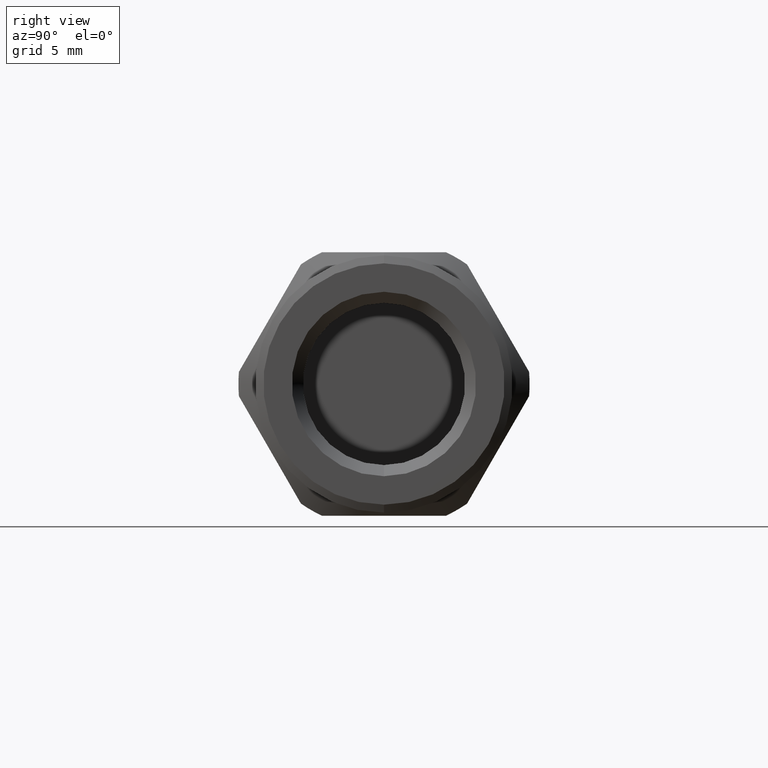
[diagram: clean part render]
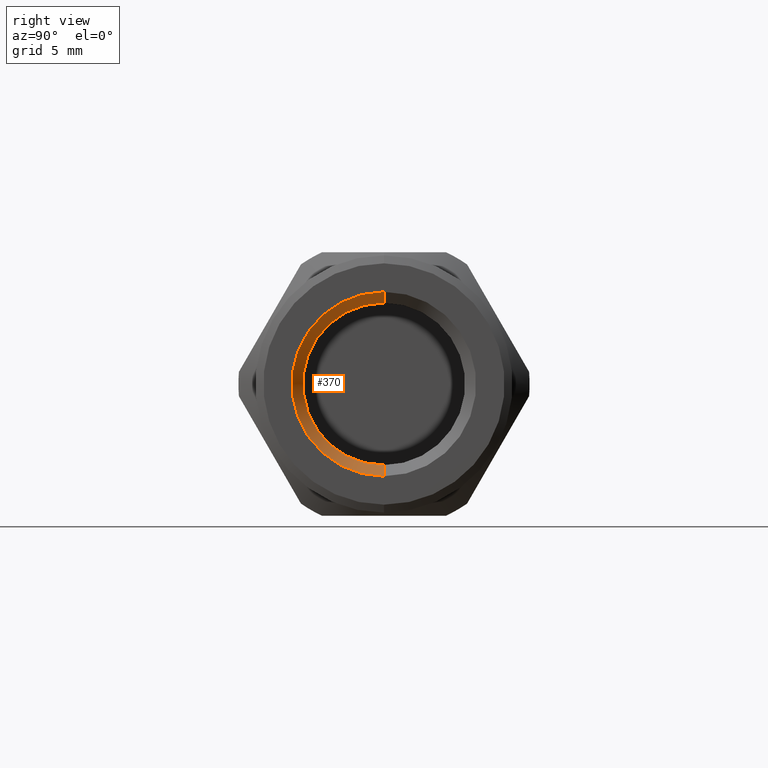
[diagram: same view with one face highlighted and labeled with its STEP entity id]
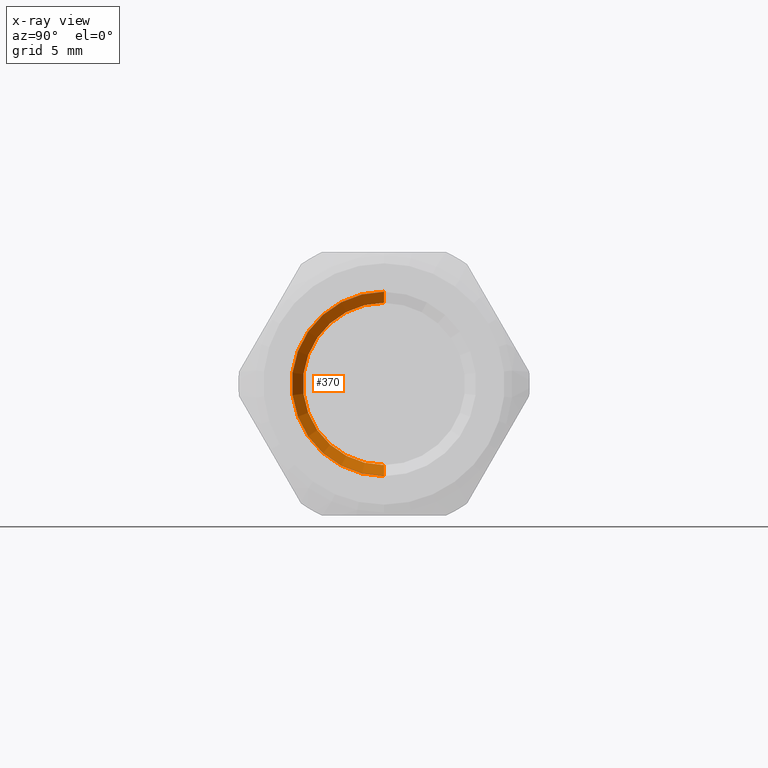
[diagram: x-ray of the same camera — body ghosted, the highlighted face saturated]
A machine part, right view. The second image highlights one B-rep face of the part: STEP entity #370.
The next image is the same camera in x-ray: the body ghosted, the highlighted face saturated — about 0% of this face is hidden behind the body in this view.
In plain terms, the highlighted conical surface has half-angle 45 deg.
Its self-contained STEP definition (entity closure, byte-faithful):
#170 = AXIS2_PLACEMENT_3D ( 'NONE', #559, #620, #621 ) ;
#171 = AXIS2_PLACEMENT_3D ( 'NONE', #614, #612, #613 ) ;
#282 = AXIS2_PLACEMENT_3D ( 'NONE', #1637, #1636, #1633 ) ;
#293 = EDGE_CURVE ( 'NONE', #740, #667, #903, .T. ) ;
#298 = EDGE_CURVE ( 'NONE', #740, #729, #896, .T. ) ;
#300 = EDGE_CURVE ( 'NONE', #667, #680, #894, .T. ) ;
#306 = EDGE_CURVE ( 'NONE', #729, #680, #890, .T. ) ;
#370 = ADVANCED_FACE ( 'NONE', ( #867 ), #866, .F. ) ;
#559 = CARTESIAN_POINT ( 'NONE',  ( -0.7999999999999120000, 0.0000000000000000000, 0.0000000000000000000 ) ) ;
#592 = CARTESIAN_POINT ( 'NONE',  ( -0.7999999999999120000, 7.164183775012016400E-016, 5.850000000000000500 ) ) ;
#593 = DIRECTION ( 'NONE',  ( 0.7071067811865350300, 0.0000000000000000000, -0.7071067811865600100 ) ) ;
#594 = DIRECTION ( 'NONE',  ( 0.7071067811865350300, 8.659560562355085700E-017, 0.7071067811865600100 ) ) ;
#597 = CARTESIAN_POINT ( 'NONE',  ( -0.7999999999999120000, 0.0000000000000000000, -5.850000000000000500 ) ) ;
#612 = DIRECTION ( 'NONE',  ( -1.000000000000000000, 0.0000000000000000000, 0.0000000000000000000 ) ) ;
#613 = DIRECTION ( 'NONE',  ( 0.0000000000000000000, 0.0000000000000000000, 1.000000000000000000 ) ) ;
#614 = CARTESIAN_POINT ( 'NONE',  ( 5.551115123125779500E-014, 0.0000000000000000000, 0.0000000000000000000 ) ) ;
#620 = DIRECTION ( 'NONE',  ( -1.000000000000000000, 0.0000000000000000000, 0.0000000000000000000 ) ) ;
#621 = DIRECTION ( 'NONE',  ( 0.0000000000000000000, 0.0000000000000000000, 1.000000000000000000 ) ) ;
#667 = VERTEX_POINT ( 'NONE', #1472 ) ;
#680 = VERTEX_POINT ( 'NONE', #1457 ) ;
#729 = VERTEX_POINT ( 'NONE', #1551 ) ;
#740 = VERTEX_POINT ( 'NONE', #1567 ) ;
#866 = CONICAL_SURFACE ( 'NONE', #282, 5.850000000000000500, 0.7853981633974659300 ) ;
#867 = FACE_OUTER_BOUND ( 'NONE', #1280, .T. ) ;
#888 = VECTOR ( 'NONE', #594, 1000.000000000000000 ) ;
#890 = LINE ( 'NONE', #592, #888 ) ;
#894 = CIRCLE ( 'NONE', #171, 6.649999999999999500 ) ;
#896 = CIRCLE ( 'NONE', #170, 5.850000000000000500 ) ;
#902 = VECTOR ( 'NONE', #593, 1000.000000000000000 ) ;
#903 = LINE ( 'NONE', #597, #902 ) ;
#1133 = ORIENTED_EDGE ( 'NONE', *, *, #298, .T. ) ;
#1134 = ORIENTED_EDGE ( 'NONE', *, *, #306, .T. ) ;
#1135 = ORIENTED_EDGE ( 'NONE', *, *, #300, .F. ) ;
#1136 = ORIENTED_EDGE ( 'NONE', *, *, #293, .F. ) ;
#1280 = EDGE_LOOP ( 'NONE', ( #1133, #1134, #1135, #1136 ) ) ;
#1457 = CARTESIAN_POINT ( 'NONE',  ( 5.551115123125779500E-014, 8.143901214329893900E-016, 6.649999999999995900 ) ) ;
#1472 = CARTESIAN_POINT ( 'NONE',  ( 5.551115123125779500E-014, 0.0000000000000000000, -6.649999999999995900 ) ) ;
#1551 = CARTESIAN_POINT ( 'NONE',  ( -0.7999999999999120000, 7.654042494670957600E-016, 5.850000000000000500 ) ) ;
#1567 = CARTESIAN_POINT ( 'NONE',  ( -0.7999999999999120000, 0.0000000000000000000, -5.850000000000000500 ) ) ;
#1633 = DIRECTION ( 'NONE',  ( 0.0000000000000000000, 0.0000000000000000000, -1.000000000000000000 ) ) ;
#1636 = DIRECTION ( 'NONE',  ( 1.000000000000000000, 0.0000000000000000000, 0.0000000000000000000 ) ) ;
#1637 = CARTESIAN_POINT ( 'NONE',  ( -0.7999999999999120000, 0.0000000000000000000, 0.0000000000000000000 ) ) ;